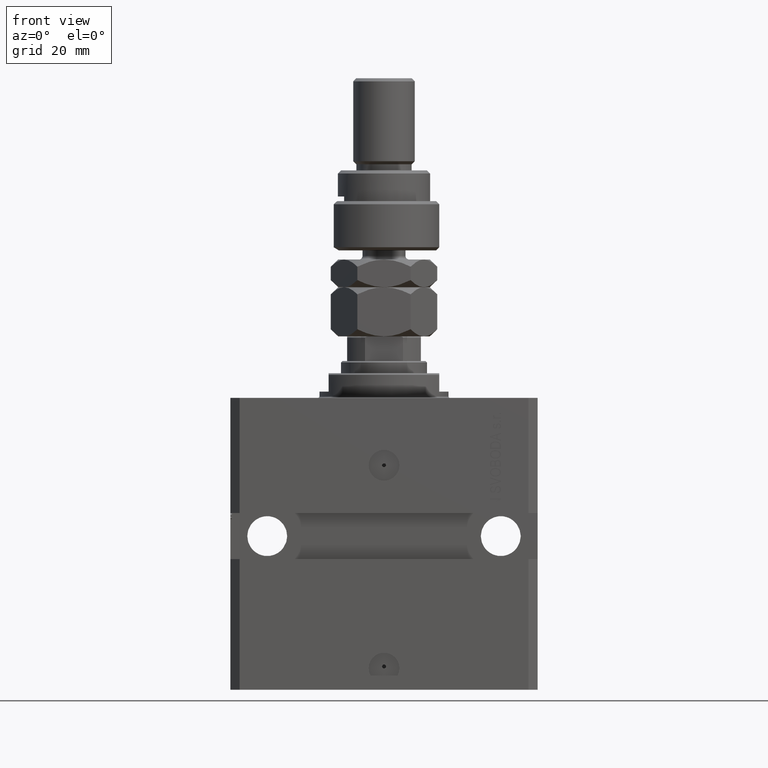
[diagram: clean part render]
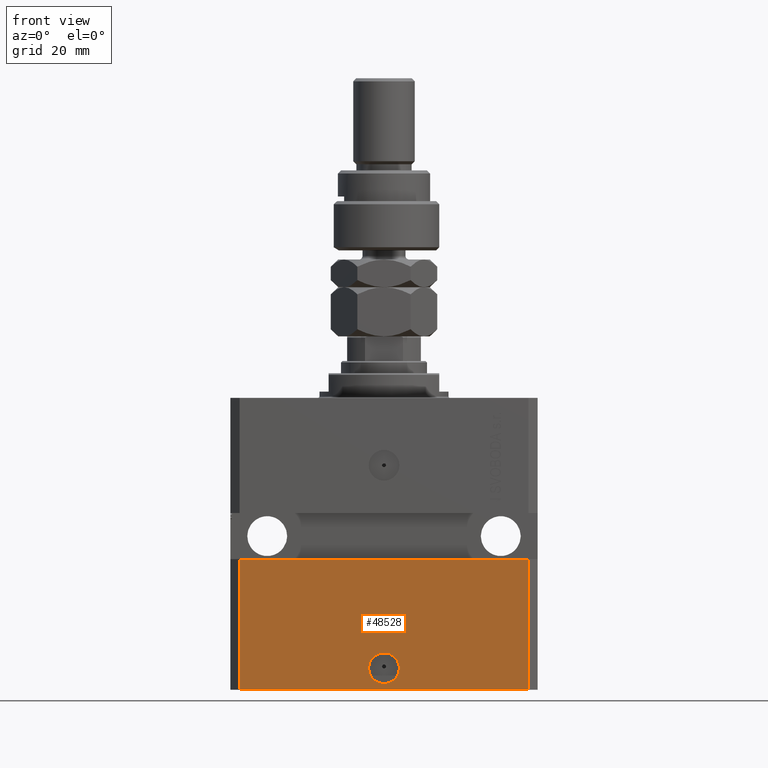
[diagram: same view with one face highlighted and labeled with its STEP entity id]
A machine part, front view. The second image highlights one B-rep face of the part: STEP entity #48528.
In plain terms, the highlighted planar face has unit normal (-0, -1, 0).
Its self-contained STEP definition (entity closure, byte-faithful):
#599 = EDGE_LOOP ( 'NONE', ( #14362, #23721 ) ) ;
#1658 = FACE_BOUND ( 'NONE', #599, .T. ) ;
#1801 = VERTEX_POINT ( 'NONE', #12525 ) ;
#3368 = CARTESIAN_POINT ( 'NONE',  ( -5.536351519074916863E-15, -37.50000000000000000, -88.00000000000000000 ) ) ;
#7753 = DIRECTION ( 'NONE',  ( 1.000000000000000000, 0.000000000000000000, 0.000000000000000000 ) ) ;
#7890 = VERTEX_POINT ( 'NONE', #47482 ) ;
#9545 = CARTESIAN_POINT ( 'NONE',  ( -5.536351519074916863E-15, -37.50000000000000000, -88.00000000000000000 ) ) ;
#9767 = DIRECTION ( 'NONE',  ( 1.000000000000000000, 1.387778780781445676E-16, 0.000000000000000000 ) ) ;
#9853 = LINE ( 'NONE', #50100, #32131 ) ;
#10372 = DIRECTION ( 'NONE',  ( 0.000000000000000000, 0.000000000000000000, 1.000000000000000000 ) ) ;
#12138 = ORIENTED_EDGE ( 'NONE', *, *, #25407, .F. ) ;
#12525 = CARTESIAN_POINT ( 'NONE',  ( 5.000000000000000888, -37.50000000000000000, -88.00000000000000000 ) ) ;
#13270 = FACE_OUTER_BOUND ( 'NONE', #25845, .T. ) ;
#14362 = ORIENTED_EDGE ( 'NONE', *, *, #49001, .F. ) ;
#14986 = DIRECTION ( 'NONE',  ( 0.000000000000000000, 0.000000000000000000, 1.000000000000000000 ) ) ;
#15144 = VECTOR ( 'NONE', #9767, 1000.000000000000000 ) ;
#17410 = DIRECTION ( 'NONE',  ( 1.000000000000000000, -1.476360405086644556E-16, 0.000000000000000000 ) ) ;
#18238 = CARTESIAN_POINT ( 'NONE',  ( 47.00000000000000000, -37.50000000000000711, -95.00000000000000000 ) ) ;
#18297 = DIRECTION ( 'NONE',  ( 1.000000000000000000, 0.000000000000000000, 0.000000000000000000 ) ) ;
#19233 = AXIS2_PLACEMENT_3D ( 'NONE', #3368, #43116, #7753 ) ;
#22713 = CARTESIAN_POINT ( 'NONE',  ( -46.99999999999998579, -37.50000000000000711, -52.50000000000000000 ) ) ;
#22738 = CARTESIAN_POINT ( 'NONE',  ( -47.00000000000000000, -37.49999999999999289, -95.00000000000000000 ) ) ;
#23432 = ORIENTED_EDGE ( 'NONE', *, *, #39268, .T. ) ;
#23721 = ORIENTED_EDGE ( 'NONE', *, *, #42481, .F. ) ;
#25004 = CIRCLE ( 'NONE', #19233, 5.000000000000006217 ) ;
#25407 = EDGE_CURVE ( 'NONE', #7890, #29983, #42103, .T. ) ;
#25487 = CARTESIAN_POINT ( 'NONE',  ( -50.00000000000001421, -37.50000000000000711, -52.50000000000000000 ) ) ;
#25650 = AXIS2_PLACEMENT_3D ( 'NONE', #9545, #37397, #18297 ) ;
#25845 = EDGE_LOOP ( 'NONE', ( #33320, #12138, #37018, #23432 ) ) ;
#26641 = CARTESIAN_POINT ( 'NONE',  ( 47.00000000000000000, -37.49999999999999289, -52.50000000000000000 ) ) ;
#27088 = CARTESIAN_POINT ( 'NONE',  ( -5.000000000000011546, -37.50000000000000000, -88.00000000000000000 ) ) ;
#29002 = DIRECTION ( 'NONE',  ( -1.476360405086644556E-16, -1.000000000000000000, 0.000000000000000000 ) ) ;
#29861 = VECTOR ( 'NONE', #35670, 1000.000000000000000 ) ;
#29983 = VERTEX_POINT ( 'NONE', #22713 ) ;
#32050 = LINE ( 'NONE', #47782, #29861 ) ;
#32131 = VECTOR ( 'NONE', #10372, 1000.000000000000000 ) ;
#33320 = ORIENTED_EDGE ( 'NONE', *, *, #47020, .F. ) ;
#35591 = CIRCLE ( 'NONE', #25650, 5.000000000000006217 ) ;
#35670 = DIRECTION ( 'NONE',  ( 1.000000000000000000, -1.476360405086644309E-16, 0.000000000000000000 ) ) ;
#37018 = ORIENTED_EDGE ( 'NONE', *, *, #45018, .T. ) ;
#37397 = DIRECTION ( 'NONE',  ( 1.176083712526788232E-16, -1.000000000000000000, 0.000000000000000000 ) ) ;
#39268 = EDGE_CURVE ( 'NONE', #39775, #44794, #9853, .T. ) ;
#39721 = VECTOR ( 'NONE', #14986, 1000.000000000000000 ) ;
#39775 = VERTEX_POINT ( 'NONE', #18238 ) ;
#40759 = LINE ( 'NONE', #25487, #15144 ) ;
#42103 = LINE ( 'NONE', #22738, #39721 ) ;
#42481 = EDGE_CURVE ( 'NONE', #45224, #1801, #35591, .T. ) ;
#43113 = AXIS2_PLACEMENT_3D ( 'NONE', #44005, #29002, #17410 ) ;
#43116 = DIRECTION ( 'NONE',  ( 1.176083712526788232E-16, -1.000000000000000000, 0.000000000000000000 ) ) ;
#44005 = CARTESIAN_POINT ( 'NONE',  ( -47.00000000000000000, -37.49999999999999289, -95.00000000000000000 ) ) ;
#44765 = PLANE ( 'NONE',  #43113 ) ;
#44794 = VERTEX_POINT ( 'NONE', #26641 ) ;
#45018 = EDGE_CURVE ( 'NONE', #7890, #39775, #32050, .T. ) ;
#45224 = VERTEX_POINT ( 'NONE', #27088 ) ;
#47020 = EDGE_CURVE ( 'NONE', #29983, #44794, #40759, .T. ) ;
#47482 = CARTESIAN_POINT ( 'NONE',  ( -47.00000000000000000, -37.49999999999999289, -95.00000000000000000 ) ) ;
#47782 = CARTESIAN_POINT ( 'NONE',  ( -47.00000000000000000, -37.49999999999999289, -95.00000000000000000 ) ) ;
#48528 = ADVANCED_FACE ( 'NONE', ( #1658, #13270 ), #44765, .T. ) ;
#49001 = EDGE_CURVE ( 'NONE', #1801, #45224, #25004, .T. ) ;
#50100 = CARTESIAN_POINT ( 'NONE',  ( 47.00000000000000000, -37.50000000000000711, -95.00000000000000000 ) ) ;